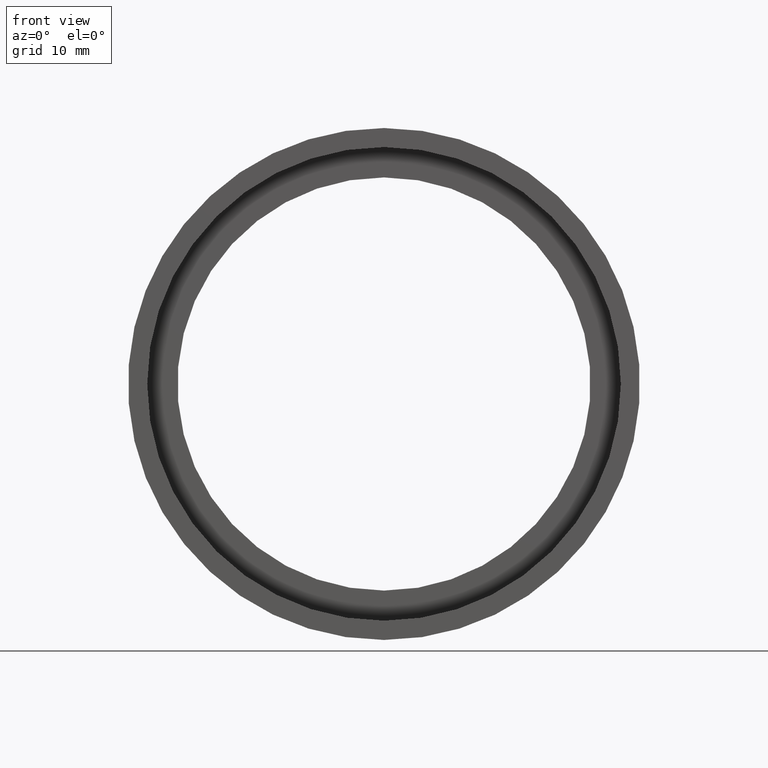
[diagram: clean part render]
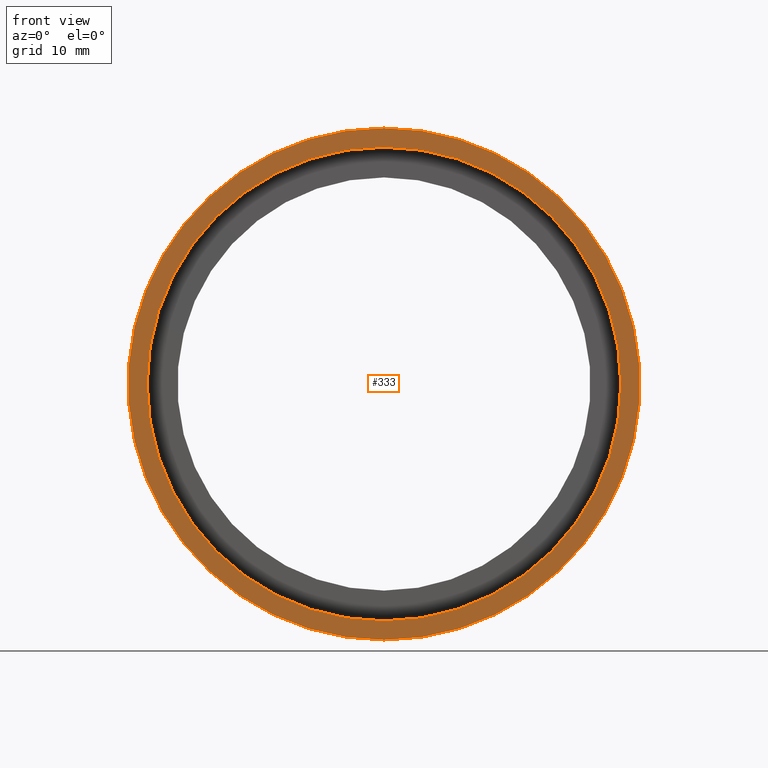
[diagram: same view with one face highlighted and labeled with its STEP entity id]
A machine part, front view. The second image highlights one B-rep face of the part: STEP entity #333.
In plain terms, the highlighted planar face has unit normal (-0, 1, 0).
Its self-contained STEP definition (entity closure, byte-faithful):
#1 = CIRCLE ( 'NONE', #322, 25.40000000000000200 ) ;
#20 = AXIS2_PLACEMENT_3D ( 'NONE', #88, #91, #100 ) ;
#21 = CARTESIAN_POINT ( 'NONE',  ( 0.0000000000000000000, 0.0000000000000000000, 25.40000000000000200 ) ) ;
#38 = CARTESIAN_POINT ( 'NONE',  ( 0.0000000000000000000, 0.0000000000000000000, 23.50000000000000700 ) ) ;
#40 = CARTESIAN_POINT ( 'NONE',  ( 2.877919977996281100E-015, 0.0000000000000000000, -23.50000000000000700 ) ) ;
#41 = CARTESIAN_POINT ( 'NONE',  ( 0.0000000000000000000, 0.0000000000000000000, 0.0000000000000000000 ) ) ;
#45 = AXIS2_PLACEMENT_3D ( 'NONE', #203, #46, #359 ) ;
#46 = DIRECTION ( 'NONE',  ( -0.0000000000000000000, 1.000000000000000000, -0.0000000000000000000 ) ) ;
#57 = EDGE_LOOP ( 'NONE', ( #400, #165 ) ) ;
#66 = AXIS2_PLACEMENT_3D ( 'NONE', #41, #109, #420 ) ;
#69 = PLANE ( 'NONE',  #112 ) ;
#82 = DIRECTION ( 'NONE',  ( -0.0000000000000000000, 1.000000000000000000, -0.0000000000000000000 ) ) ;
#88 = CARTESIAN_POINT ( 'NONE',  ( 0.0000000000000000000, 0.0000000000000000000, 0.0000000000000000000 ) ) ;
#91 = DIRECTION ( 'NONE',  ( -0.0000000000000000000, 1.000000000000000000, -0.0000000000000000000 ) ) ;
#100 = DIRECTION ( 'NONE',  ( 0.0000000000000000000, 0.0000000000000000000, 1.000000000000000000 ) ) ;
#109 = DIRECTION ( 'NONE',  ( -0.0000000000000000000, 1.000000000000000000, -0.0000000000000000000 ) ) ;
#112 = AXIS2_PLACEMENT_3D ( 'NONE', #383, #308, #358 ) ;
#118 = CIRCLE ( 'NONE', #66, 25.40000000000000200 ) ;
#119 = DIRECTION ( 'NONE',  ( 0.0000000000000000000, 0.0000000000000000000, 1.000000000000000000 ) ) ;
#140 = VERTEX_POINT ( 'NONE', #38 ) ;
#144 = VERTEX_POINT ( 'NONE', #21 ) ;
#150 = FACE_OUTER_BOUND ( 'NONE', #238, .T. ) ;
#155 = EDGE_CURVE ( 'NONE', #144, #169, #118, .T. ) ;
#165 = ORIENTED_EDGE ( 'NONE', *, *, #187, .T. ) ;
#169 = VERTEX_POINT ( 'NONE', #366 ) ;
#170 = EDGE_CURVE ( 'NONE', #169, #144, #1, .T. ) ;
#184 = FACE_BOUND ( 'NONE', #57, .T. ) ;
#187 = EDGE_CURVE ( 'NONE', #286, #140, #394, .T. ) ;
#203 = CARTESIAN_POINT ( 'NONE',  ( 0.0000000000000000000, 0.0000000000000000000, 0.0000000000000000000 ) ) ;
#234 = ORIENTED_EDGE ( 'NONE', *, *, #170, .F. ) ;
#236 = CIRCLE ( 'NONE', #45, 23.50000000000000700 ) ;
#238 = EDGE_LOOP ( 'NONE', ( #254, #234 ) ) ;
#254 = ORIENTED_EDGE ( 'NONE', *, *, #155, .F. ) ;
#286 = VERTEX_POINT ( 'NONE', #40 ) ;
#308 = DIRECTION ( 'NONE',  ( -0.0000000000000000000, 1.000000000000000000, 0.0000000000000000000 ) ) ;
#322 = AXIS2_PLACEMENT_3D ( 'NONE', #323, #82, #119 ) ;
#323 = CARTESIAN_POINT ( 'NONE',  ( 0.0000000000000000000, 0.0000000000000000000, 0.0000000000000000000 ) ) ;
#333 = ADVANCED_FACE ( 'NONE', ( #150, #184 ), #69, .F. ) ;
#358 = DIRECTION ( 'NONE',  ( 0.0000000000000000000, 0.0000000000000000000, 1.000000000000000000 ) ) ;
#359 = DIRECTION ( 'NONE',  ( 0.0000000000000000000, 0.0000000000000000000, 1.000000000000000000 ) ) ;
#366 = CARTESIAN_POINT ( 'NONE',  ( 3.110602869834277300E-015, 0.0000000000000000000, -25.40000000000000200 ) ) ;
#383 = CARTESIAN_POINT ( 'NONE',  ( 25.40000000000000200, -2.755455298081544800E-016, 0.0000000000000000000 ) ) ;
#394 = CIRCLE ( 'NONE', #20, 23.50000000000000700 ) ;
#400 = ORIENTED_EDGE ( 'NONE', *, *, #424, .T. ) ;
#420 = DIRECTION ( 'NONE',  ( 0.0000000000000000000, 0.0000000000000000000, 1.000000000000000000 ) ) ;
#424 = EDGE_CURVE ( 'NONE', #140, #286, #236, .T. ) ;